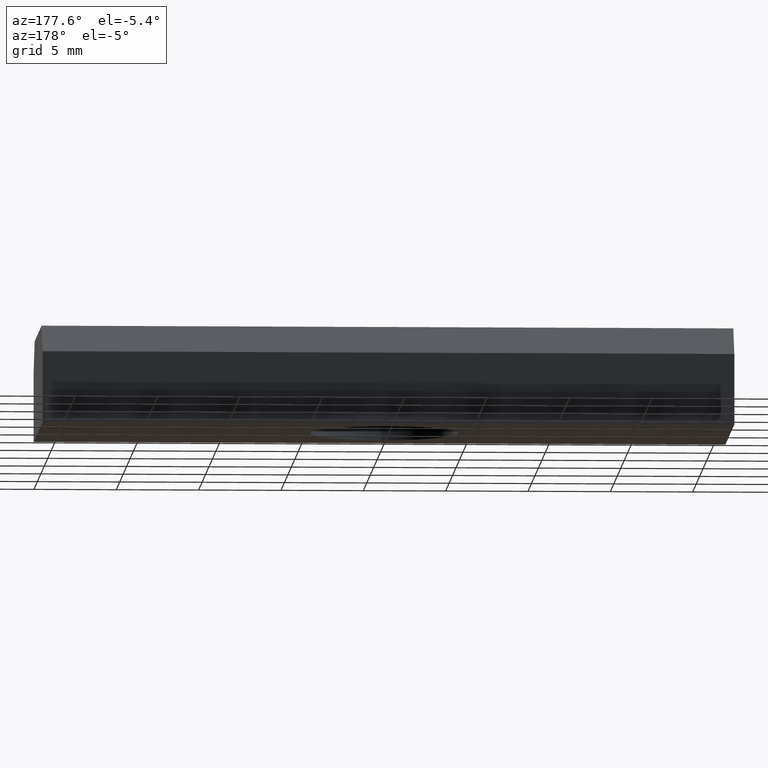
[diagram: clean part render]
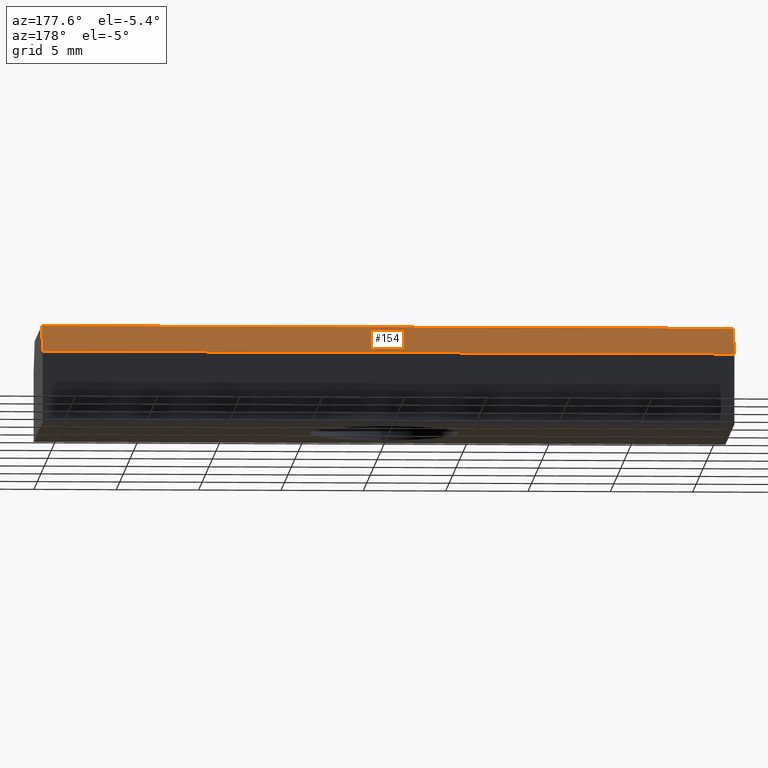
[diagram: same view with one face highlighted and labeled with its STEP entity id]
A machine part, auxiliary view. The second image highlights one B-rep face of the part: STEP entity #154.
In plain terms, the highlighted planar face has unit normal (-0, 0.7498, 0.6616).
Its self-contained STEP definition (entity closure, byte-faithful):
#98=CARTESIAN_POINT('',(-21.000000000084128,6.499999999974079,4.299999999982445));
#99=VERTEX_POINT('',#98);
#106=CARTESIAN_POINT('',(20.999999999915872,6.499999999974079,4.299999999982445));
#107=VERTEX_POINT('',#106);
#108=CARTESIAN_POINT('',(-21.000000000084128,6.499999999974079,4.299999999982445));
#109=DIRECTION('',(1.0,0.0,0.0));
#110=VECTOR('',#109,42.0);
#111=LINE('',#108,#110);
#112=EDGE_CURVE('',#99,#107,#111,.T.);
#124=CARTESIAN_POINT('',(-21.000000000084128,6.499999999974079,4.299999999982445));
#125=DIRECTION('',(-4.051264E-017,0.749837855365034,0.661621637086913));
#126=DIRECTION('',(-4.591433E-017,-0.661621637086913,0.749837855365034));
#127=AXIS2_PLACEMENT_3D('',#124,#125,#126);
#128=PLANE('',#127);
#129=CARTESIAN_POINT('',(-21.000000000084128,4.999999999979991,5.999999999975897));
#130=VERTEX_POINT('',#129);
#131=CARTESIAN_POINT('',(-21.000000000084128,6.499999999974079,4.299999999982445));
#132=DIRECTION('',(0.0,-0.661621637086846,0.749837855365093));
#133=VECTOR('',#132,2.267156809741826);
#134=LINE('',#131,#133);
#135=EDGE_CURVE('',#99,#130,#134,.T.);
#136=ORIENTED_EDGE('',*,*,#135,.T.);
#137=CARTESIAN_POINT('',(20.999999999915872,4.999999999979991,5.999999999975897));
#138=VERTEX_POINT('',#137);
#139=CARTESIAN_POINT('',(-21.000000000084128,4.999999999979991,5.999999999975897));
#140=DIRECTION('',(1.0,0.0,0.0));
#141=VECTOR('',#140,42.0);
#142=LINE('',#139,#141);
#143=EDGE_CURVE('',#130,#138,#142,.T.);
#144=ORIENTED_EDGE('',*,*,#143,.T.);
#145=CARTESIAN_POINT('',(20.999999999915872,6.499999999974079,4.299999999982445));
#146=DIRECTION('',(0.0,-0.661621637086846,0.749837855365093));
#147=VECTOR('',#146,2.267156809741826);
#148=LINE('',#145,#147);
#149=EDGE_CURVE('',#107,#138,#148,.T.);
#150=ORIENTED_EDGE('',*,*,#149,.F.);
#151=ORIENTED_EDGE('',*,*,#112,.F.);
#152=EDGE_LOOP('',(#136,#144,#150,#151));
#153=FACE_OUTER_BOUND('',#152,.T.);
#154=ADVANCED_FACE('',(#153),#128,.T.);